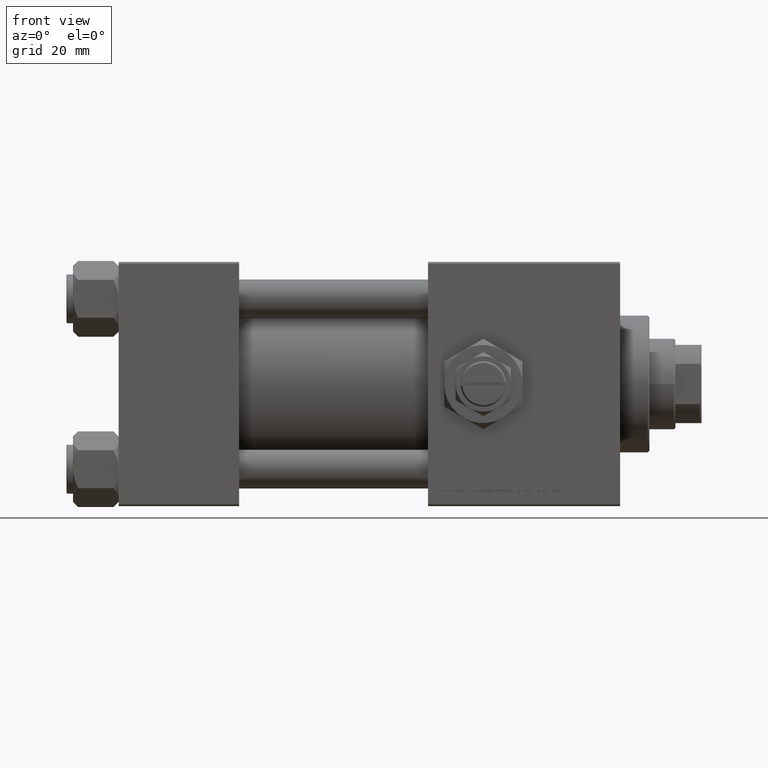
[diagram: clean part render]
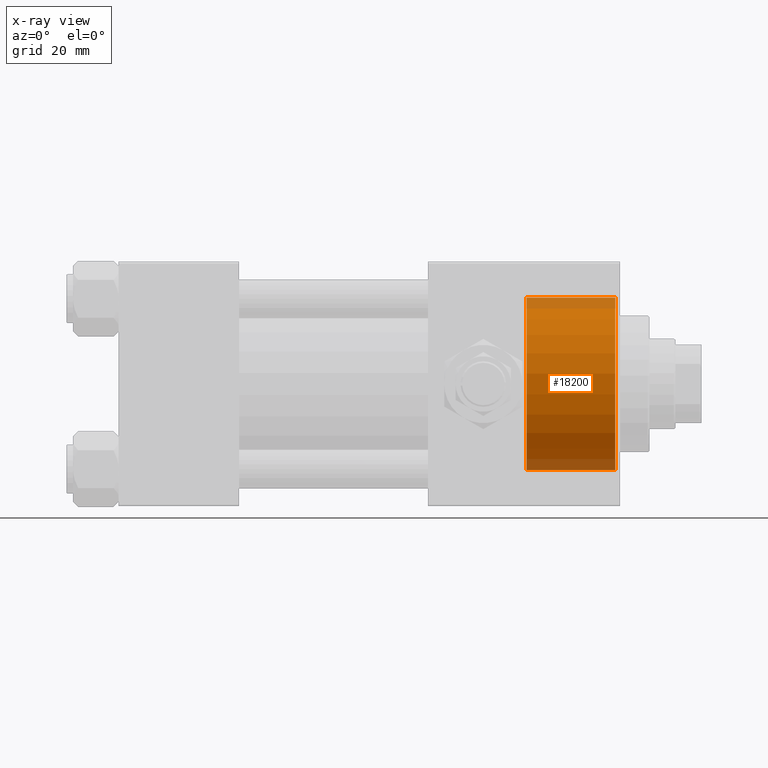
[diagram: x-ray — body ghosted, one internal face saturated and labeled with its STEP entity id]
A machine part, front view, then the same camera in x-ray: the body is ghosted and one INTERNAL B-rep face — a face not visible from any outside direction — is saturated and labeled: STEP entity #18200.
In plain terms, the highlighted cylindrical surface (partial cylindrical patch) has radius 26.5 mm, axis along (1, 0, 0).
Its self-contained STEP definition (entity closure, byte-faithful):
#2199 = VERTEX_POINT ( 'NONE', #48434 ) ;
#5117 = DIRECTION ( 'NONE',  ( 0.000000000000000000, 0.000000000000000000, -1.000000000000000000 ) ) ;
#5190 = EDGE_CURVE ( 'NONE', #22353, #47371, #17298, .T. ) ;
#6591 = ORIENTED_EDGE ( 'NONE', *, *, #13401, .F. ) ;
#8141 = ORIENTED_EDGE ( 'NONE', *, *, #11244, .T. ) ;
#11244 = EDGE_CURVE ( 'NONE', #2199, #47371, #25059, .T. ) ;
#13401 = EDGE_CURVE ( 'NONE', #42228, #22353, #18425, .T. ) ;
#14480 = VECTOR ( 'NONE', #51052, 1000.000000000000000 ) ;
#16693 = AXIS2_PLACEMENT_3D ( 'NONE', #19099, #34891, #43290 ) ;
#16764 = AXIS2_PLACEMENT_3D ( 'NONE', #36332, #32371, #24476 ) ;
#17298 = LINE ( 'NONE', #33870, #43513 ) ;
#17744 = CARTESIAN_POINT ( 'NONE',  ( 125.2999999999999972, 3.245314017740486554E-15, 26.50000000000000355 ) ) ;
#18170 = ORIENTED_EDGE ( 'NONE', *, *, #5190, .F. ) ;
#18200 = ADVANCED_FACE ( 'NONE', ( #45093 ), #45359, .F. ) ;
#18384 = ORIENTED_EDGE ( 'NONE', *, *, #20386, .T. ) ;
#18425 = CIRCLE ( 'NONE', #16764, 26.50000000000000355 ) ;
#18588 = AXIS2_PLACEMENT_3D ( 'NONE', #37214, #20629, #5117 ) ;
#19099 = CARTESIAN_POINT ( 'NONE',  ( 152.5000000000000568, 0.000000000000000000, 0.000000000000000000 ) ) ;
#20386 = EDGE_CURVE ( 'NONE', #42228, #2199, #43155, .T. ) ;
#20629 = DIRECTION ( 'NONE',  ( 1.000000000000000000, -0.000000000000000000, -0.000000000000000000 ) ) ;
#22353 = VERTEX_POINT ( 'NONE', #50581 ) ;
#24476 = DIRECTION ( 'NONE',  ( 0.000000000000000000, 0.000000000000000000, -1.000000000000000000 ) ) ;
#25059 = CIRCLE ( 'NONE', #16693, 26.50000000000000355 ) ;
#29098 = CARTESIAN_POINT ( 'NONE',  ( 152.5000000000000568, 0.000000000000000000, -26.50000000000000355 ) ) ;
#32371 = DIRECTION ( 'NONE',  ( 1.000000000000000000, 0.000000000000000000, 0.000000000000000000 ) ) ;
#33347 = DIRECTION ( 'NONE',  ( 1.000000000000000000, -0.000000000000000000, -0.000000000000000000 ) ) ;
#33870 = CARTESIAN_POINT ( 'NONE',  ( 125.2999999999999972, 0.000000000000000000, -26.50000000000000355 ) ) ;
#34891 = DIRECTION ( 'NONE',  ( 1.000000000000000000, 0.000000000000000000, 0.000000000000000000 ) ) ;
#36332 = CARTESIAN_POINT ( 'NONE',  ( 125.2999999999999972, 0.000000000000000000, 0.000000000000000000 ) ) ;
#37214 = CARTESIAN_POINT ( 'NONE',  ( 125.2999999999999972, 0.000000000000000000, 0.000000000000000000 ) ) ;
#42228 = VERTEX_POINT ( 'NONE', #17744 ) ;
#43155 = LINE ( 'NONE', #47102, #14480 ) ;
#43290 = DIRECTION ( 'NONE',  ( 0.000000000000000000, 0.000000000000000000, 1.000000000000000000 ) ) ;
#43513 = VECTOR ( 'NONE', #33347, 1000.000000000000000 ) ;
#45093 = FACE_OUTER_BOUND ( 'NONE', #50205, .T. ) ;
#45359 = CYLINDRICAL_SURFACE ( 'NONE', #18588, 26.50000000000000355 ) ;
#47102 = CARTESIAN_POINT ( 'NONE',  ( 125.2999999999999972, 3.245314017740486554E-15, 26.50000000000000355 ) ) ;
#47371 = VERTEX_POINT ( 'NONE', #29098 ) ;
#48434 = CARTESIAN_POINT ( 'NONE',  ( 152.5000000000000568, 3.245314017740486554E-15, 26.50000000000000355 ) ) ;
#50205 = EDGE_LOOP ( 'NONE', ( #6591, #18384, #8141, #18170 ) ) ;
#50581 = CARTESIAN_POINT ( 'NONE',  ( 125.2999999999999972, 0.000000000000000000, -26.50000000000000355 ) ) ;
#51052 = DIRECTION ( 'NONE',  ( 1.000000000000000000, -0.000000000000000000, -0.000000000000000000 ) ) ;